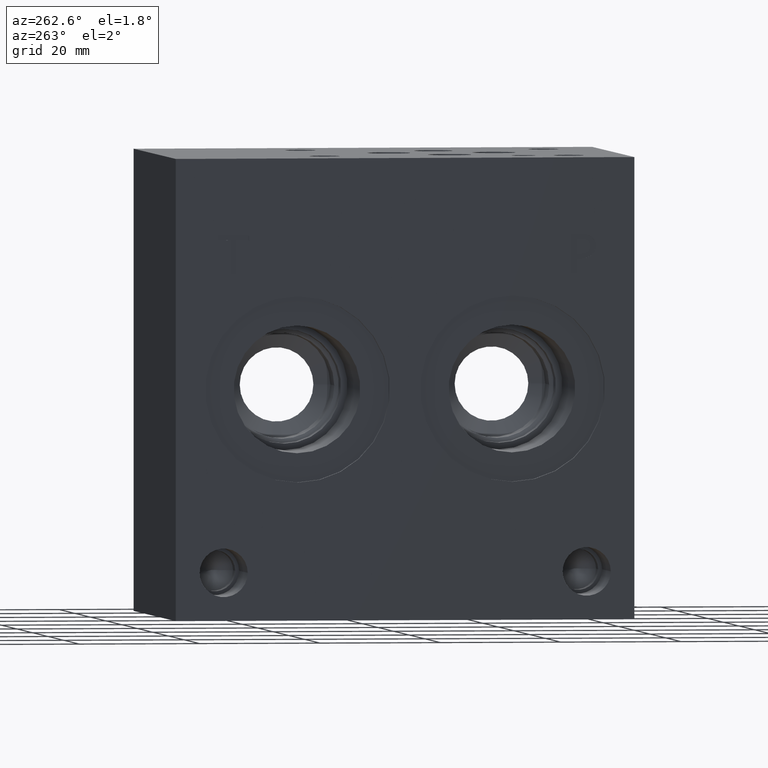
[diagram: clean part render]
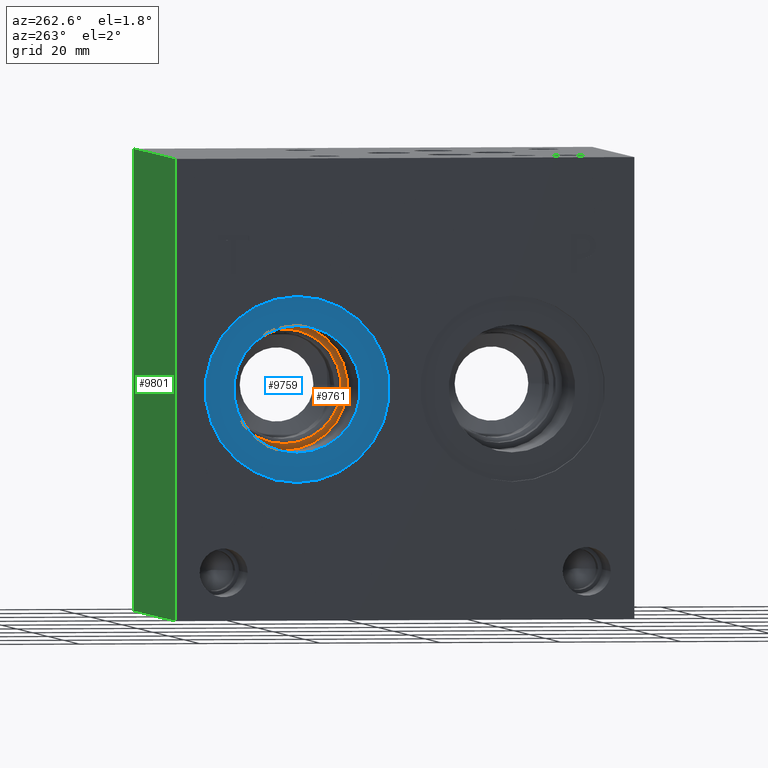
[diagram: same view with three faces highlighted in distinct colors, each labeled with its STEP entity id]
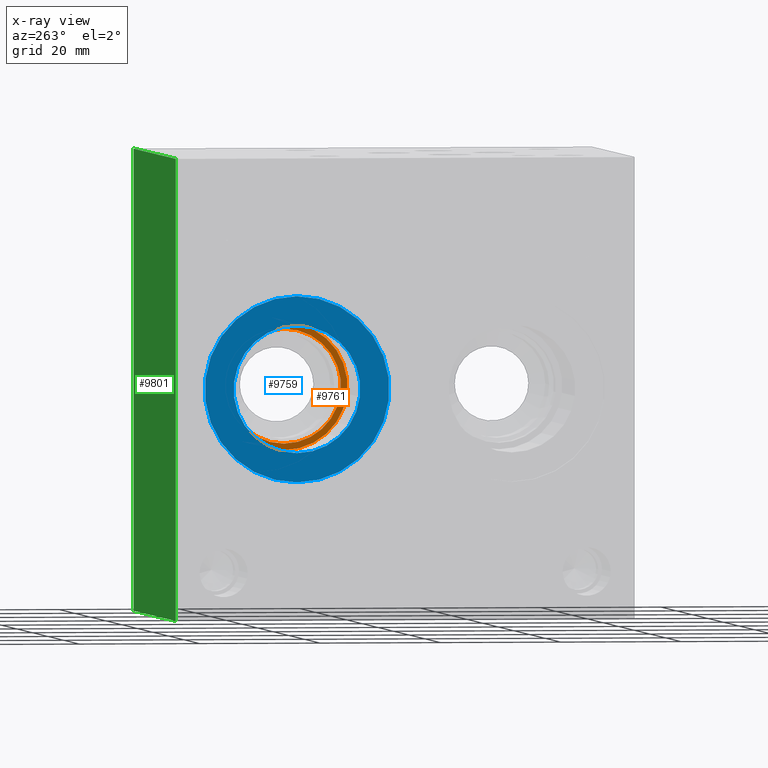
[diagram: x-ray of the same camera — body ghosted, the three highlighted faces saturated]
A machine part, auxiliary view with three faces highlighted in distinct colors.
The next image is the same camera in x-ray (body ghosted, the three faces saturated) — at least one of them is partly hidden behind the body in this view.
Their STEP definitions:

[orange] entity #9761 — the highlighted planar face has unit normal (1, 0, 0).
#184=CIRCLE('',#10251,10.5283);
#185=CIRCLE('',#10252,10.5283);
#186=CIRCLE('',#10254,9.4615);
#187=CIRCLE('',#10255,9.4615);
#317=FACE_BOUND('',#1717,.T.);
#1156=FACE_OUTER_BOUND('',#1716,.T.);
#1716=EDGE_LOOP('',(#8368,#8369));
#1717=EDGE_LOOP('',(#8370,#8371));
#4483=VERTEX_POINT('',#16537);
#4484=VERTEX_POINT('',#16539);
#4485=VERTEX_POINT('',#16543);
#4486=VERTEX_POINT('',#16544);
#5807=EDGE_CURVE('',#4483,#4484,#184,.T.);
#5808=EDGE_CURVE('',#4484,#4483,#185,.T.);
#5809=EDGE_CURVE('',#4485,#4486,#186,.T.);
#5810=EDGE_CURVE('',#4486,#4485,#187,.T.);
#8368=ORIENTED_EDGE('',*,*,#5808,.F.);
#8369=ORIENTED_EDGE('',*,*,#5807,.F.);
#8370=ORIENTED_EDGE('',*,*,#5809,.T.);
#8371=ORIENTED_EDGE('',*,*,#5810,.T.);
#8904=PLANE('',#10253);
#9761=ADVANCED_FACE('',(#1156,#317),#8904,.F.);
#10251=AXIS2_PLACEMENT_3D('',#16540,#12129,#12130);
#10252=AXIS2_PLACEMENT_3D('',#16541,#12131,#12132);
#10253=AXIS2_PLACEMENT_3D('',#16542,#12133,#12134);
#10254=AXIS2_PLACEMENT_3D('',#16545,#12135,#12136);
#10255=AXIS2_PLACEMENT_3D('',#16546,#12137,#12138);
#12129=DIRECTION('center_axis',(1.,0.,0.));
#12130=DIRECTION('ref_axis',(0.,0.,-1.));
#12131=DIRECTION('center_axis',(1.,0.,0.));
#12132=DIRECTION('ref_axis',(0.,0.,-1.));
#12133=DIRECTION('center_axis',(1.,0.,0.));
#12134=DIRECTION('ref_axis',(0.,0.,-1.));
#12135=DIRECTION('center_axis',(1.,0.,0.));
#12136=DIRECTION('ref_axis',(0.,0.,-1.));
#12137=DIRECTION('center_axis',(1.,0.,0.));
#12138=DIRECTION('ref_axis',(0.,0.,-1.));
#16537=CARTESIAN_POINT('',(17.3736,55.9562,27.5717));
#16539=CARTESIAN_POINT('',(17.3736,55.9562,48.6283));
#16540=CARTESIAN_POINT('Origin',(17.3736,55.9562,38.1));
#16541=CARTESIAN_POINT('Origin',(17.3736,55.9562,38.1));
#16542=CARTESIAN_POINT('Origin',(17.3736,55.9562,47.5615));
#16543=CARTESIAN_POINT('',(17.3736,55.9562,47.5615));
#16544=CARTESIAN_POINT('',(17.3736,55.9562,28.6385));
#16545=CARTESIAN_POINT('Origin',(17.3736,55.9562,38.1));
#16546=CARTESIAN_POINT('Origin',(17.3736,55.9562,38.1));

[blue] entity #9759 — the highlighted planar face has unit normal (1, 0, 0).
#180=CIRCLE('',#10245,15.3416);
#181=CIRCLE('',#10246,15.3416);
#182=CIRCLE('',#10248,10.5283);
#183=CIRCLE('',#10249,10.5283);
#316=FACE_BOUND('',#1714,.T.);
#1154=FACE_OUTER_BOUND('',#1713,.T.);
#1713=EDGE_LOOP('',(#8358,#8359));
#1714=EDGE_LOOP('',(#8360,#8361));
#4479=VERTEX_POINT('',#16526);
#4480=VERTEX_POINT('',#16528);
#4481=VERTEX_POINT('',#16532);
#4482=VERTEX_POINT('',#16533);
#5802=EDGE_CURVE('',#4479,#4480,#180,.T.);
#5803=EDGE_CURVE('',#4480,#4479,#181,.T.);
#5804=EDGE_CURVE('',#4481,#4482,#182,.T.);
#5805=EDGE_CURVE('',#4482,#4481,#183,.T.);
#8358=ORIENTED_EDGE('',*,*,#5803,.F.);
#8359=ORIENTED_EDGE('',*,*,#5802,.F.);
#8360=ORIENTED_EDGE('',*,*,#5804,.T.);
#8361=ORIENTED_EDGE('',*,*,#5805,.T.);
#8903=PLANE('',#10247);
#9759=ADVANCED_FACE('',(#1154,#316),#8903,.F.);
#10245=AXIS2_PLACEMENT_3D('',#16529,#12116,#12117);
#10246=AXIS2_PLACEMENT_3D('',#16530,#12118,#12119);
#10247=AXIS2_PLACEMENT_3D('',#16531,#12120,#12121);
#10248=AXIS2_PLACEMENT_3D('',#16534,#12122,#12123);
#10249=AXIS2_PLACEMENT_3D('',#16535,#12124,#12125);
#12116=DIRECTION('center_axis',(1.,0.,0.));
#12117=DIRECTION('ref_axis',(0.,0.,-1.));
#12118=DIRECTION('center_axis',(1.,0.,0.));
#12119=DIRECTION('ref_axis',(0.,0.,-1.));
#12120=DIRECTION('center_axis',(1.,0.,0.));
#12121=DIRECTION('ref_axis',(0.,0.,-1.));
#12122=DIRECTION('center_axis',(1.,0.,0.));
#12123=DIRECTION('ref_axis',(0.,0.,-1.));
#12124=DIRECTION('center_axis',(1.,0.,0.));
#12125=DIRECTION('ref_axis',(0.,0.,-1.));
#16526=CARTESIAN_POINT('',(0.7874,55.9562,22.7584));
#16528=CARTESIAN_POINT('',(0.7874,55.9562,53.4416));
#16529=CARTESIAN_POINT('Origin',(0.7874,55.9562,38.1));
#16530=CARTESIAN_POINT('Origin',(0.7874,55.9562,38.1));
#16531=CARTESIAN_POINT('Origin',(0.7874,55.9562,48.6283));
#16532=CARTESIAN_POINT('',(0.7874,55.9562,48.6283));
#16533=CARTESIAN_POINT('',(0.787400000000001,55.9562,27.5717));
#16534=CARTESIAN_POINT('Origin',(0.7874,55.9562,38.1));
#16535=CARTESIAN_POINT('Origin',(0.7874,55.9562,38.1));

[green] entity #9801 — the highlighted planar face has unit normal (0, 1, 0).
#1196=FACE_OUTER_BOUND('',#1763,.T.);
#1763=EDGE_LOOP('',(#8567,#8568,#8569,#8570));
#2510=LINE('',#15650,#3441);
#2635=LINE('',#16266,#3566);
#2706=LINE('',#16764,#3637);
#2707=LINE('',#16765,#3638);
#3441=VECTOR('',#11581,10.);
#3566=VECTOR('',#11812,10.);
#3637=VECTOR('',#12387,10.);
#3638=VECTOR('',#12388,10.);
#4277=VERTEX_POINT('',#15647);
#4278=VERTEX_POINT('',#15649);
#4387=VERTEX_POINT('',#16262);
#4388=VERTEX_POINT('',#16264);
#5509=EDGE_CURVE('',#4277,#4278,#2510,.T.);
#5680=EDGE_CURVE('',#4387,#4388,#2635,.T.);
#5911=EDGE_CURVE('',#4277,#4387,#2706,.T.);
#5912=EDGE_CURVE('',#4278,#4388,#2707,.T.);
#8567=ORIENTED_EDGE('',*,*,#5911,.T.);
#8568=ORIENTED_EDGE('',*,*,#5680,.T.);
#8569=ORIENTED_EDGE('',*,*,#5912,.F.);
#8570=ORIENTED_EDGE('',*,*,#5509,.F.);
#8912=PLANE('',#10363);
#9801=ADVANCED_FACE('',(#1196),#8912,.T.);
#10363=AXIS2_PLACEMENT_3D('',#16763,#12385,#12386);
#11581=DIRECTION('',(0.,0.,1.));
#11812=DIRECTION('',(0.,0.,1.));
#12385=DIRECTION('center_axis',(0.,1.,0.));
#12386=DIRECTION('ref_axis',(-1.,0.,0.));
#12387=DIRECTION('',(-1.,0.,0.));
#12388=DIRECTION('',(-1.,0.,0.));
#15647=CARTESIAN_POINT('',(53.975,76.2,0.));
#15649=CARTESIAN_POINT('',(53.975,76.2,76.2));
#15650=CARTESIAN_POINT('',(53.975,76.2,0.));
#16262=CARTESIAN_POINT('',(0.,76.2,0.));
#16264=CARTESIAN_POINT('',(0.,76.2,76.2));
#16266=CARTESIAN_POINT('',(0.,76.2,0.));
#16763=CARTESIAN_POINT('Origin',(53.975,76.2,0.));
#16764=CARTESIAN_POINT('',(53.975,76.2,0.));
#16765=CARTESIAN_POINT('',(53.975,76.2,76.2));